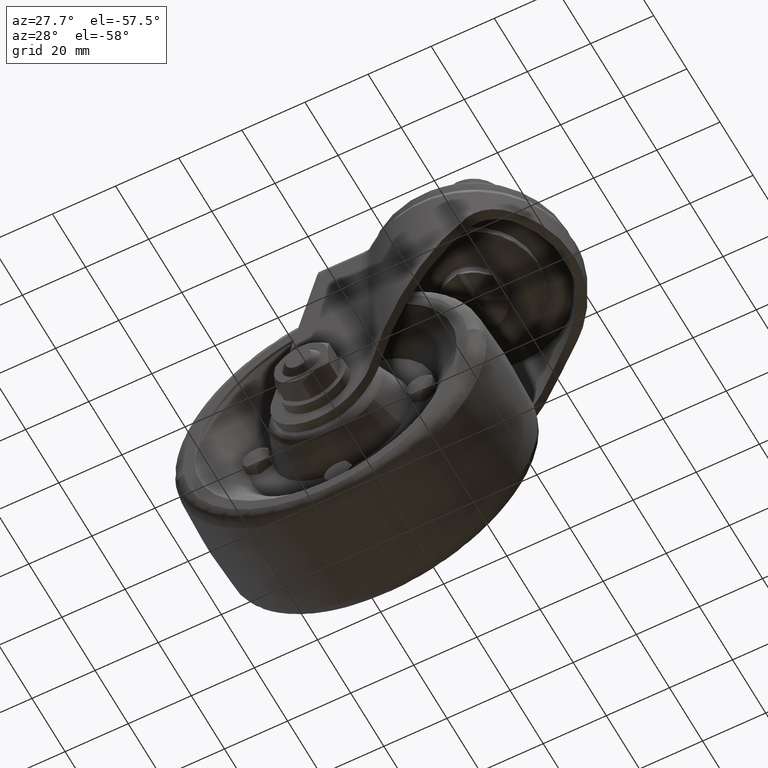
[diagram: clean part render]
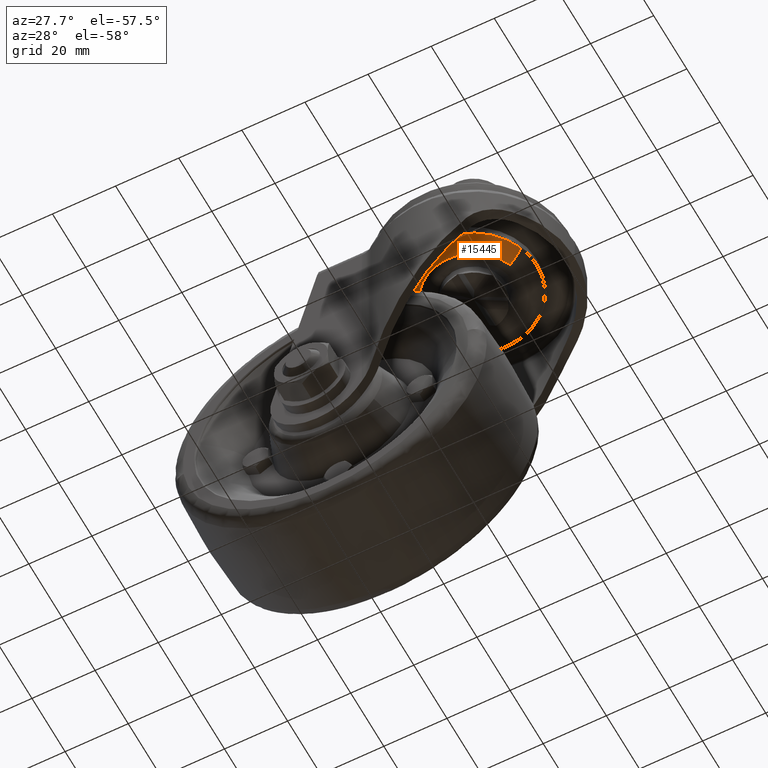
[diagram: same view with one face highlighted and labeled with its STEP entity id]
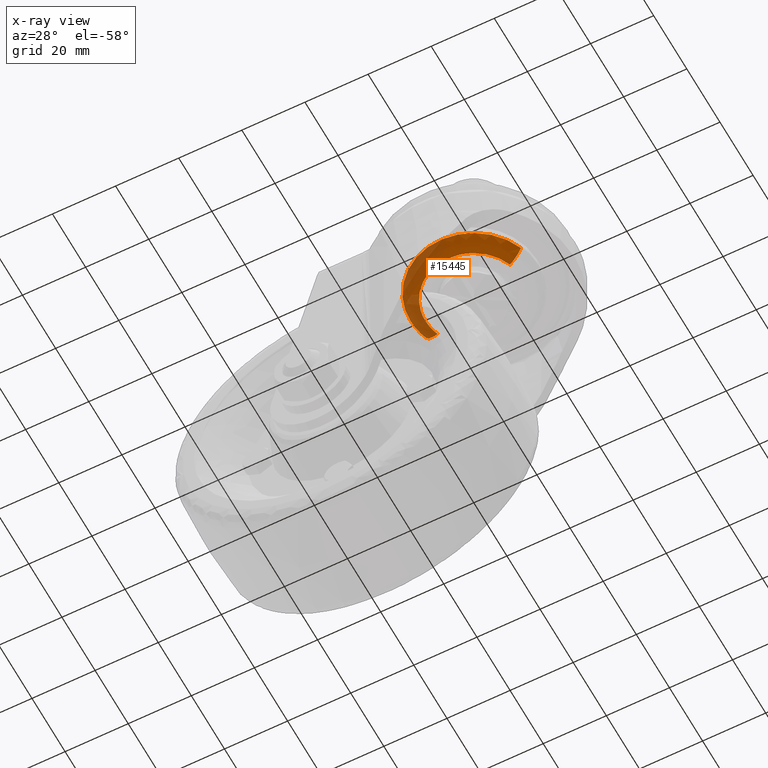
[diagram: x-ray of the same camera — body ghosted, the highlighted face saturated]
A machine part, auxiliary view. The second image highlights one B-rep face of the part: STEP entity #15445.
The next image is the same camera in x-ray: the body ghosted, the highlighted face saturated — about 49% of this face is hidden behind the body in this view.
In plain terms, the highlighted face is a freeform B-spline surface patch.
Its self-contained STEP definition (entity closure, byte-faithful):
#15159=CARTESIAN_POINT('',(18.721037244474051,-7.141382175629758,-17.158471476539489));
#15160=VERTEX_POINT('',#15159);
#15190=CARTESIAN_POINT('',(-19.407384926126159,4.982969518086657,-17.158471476457429));
#15191=VERTEX_POINT('',#15190);
#15205=CARTESIAN_POINT('',(-20.036880368243541,1.421085E-014,-17.158471476386229));
#15206=VERTEX_POINT('',#15205);
#15207=CARTESIAN_POINT('',(-20.036880368243541,1.421085E-014,-17.158471476386229));
#15208=CARTESIAN_POINT('',(-20.036880368216991,2.531246643010311,-17.158471476421457));
#15209=CARTESIAN_POINT('',(-19.407384926126163,4.982969518086657,-17.158471476457422));
#15217=(BOUNDED_CURVE()B_SPLINE_CURVE(2,(#15207,#15208,#15209),.UNSPECIFIED.,.F.,.U.)B_SPLINE_CURVE_WITH_KNOTS((3,3),(0.0,0.042443238244801),.UNSPECIFIED.)CURVE()GEOMETRIC_REPRESENTATION_ITEM()RATIONAL_B_SPLINE_CURVE((1.0,0.950274653334456,0.917433344551560))REPRESENTATION_ITEM(''));
#15218=EDGE_CURVE('',#15206,#15191,#15217,.T.);
#15220=CARTESIAN_POINT('',(18.721037244474051,-7.141382175629758,-17.158471476539489));
#15221=CARTESIAN_POINT('',(18.101685071016099,-8.766330898499282,-17.158471476538271));
#15222=CARTESIAN_POINT('',(16.817701110681721,-11.145520718454730,-17.158471476535031));
#15223=CARTESIAN_POINT('',(14.444360171823501,-13.989874636561961,-17.158471476527961));
#15224=CARTESIAN_POINT('',(11.897373814698010,-16.265202895982320,-17.158471476519821));
#15225=CARTESIAN_POINT('',(9.154508915613791,-17.926623839450169,-17.158471476510481));
#15226=CARTESIAN_POINT('',(6.191654015326948,-19.116335233089082,-17.158471476499891));
#15227=CARTESIAN_POINT('',(3.447062410158945,-19.822263014305761,-17.158471476490011));
#15228=CARTESIAN_POINT('',(0.696989509952723,-20.082629629037431,-17.158471476479900));
#15229=CARTESIAN_POINT('',(-2.057798885781684,-19.984077171062310,-17.158471476468321));
#15230=CARTESIAN_POINT('',(-4.568304838842700,-19.577593126093831,-17.158471476459610));
#15231=CARTESIAN_POINT('',(-7.688416452769262,-18.607358076578670,-17.158471476446259));
#15232=CARTESIAN_POINT('',(-10.546277245489909,-17.156683575066491,-17.158471476434730));
#15233=CARTESIAN_POINT('',(-13.394154019322990,-15.021804264377360,-17.158471476422200));
#15234=CARTESIAN_POINT('',(-15.308620989848009,-13.026792181010780,-17.158471476413499));
#15235=CARTESIAN_POINT('',(-17.058535792947421,-10.622707804015590,-17.158471476405111));
#15236=CARTESIAN_POINT('',(-18.381133408649550,-8.196039391029869,-17.158471476398329));
#15237=CARTESIAN_POINT('',(-19.676060707443590,-4.491939157025166,-17.158471476390790));
#15238=CARTESIAN_POINT('',(-20.037452908914819,-1.738973031245729,-17.158471476387451));
#15239=CARTESIAN_POINT('',(-20.036880368243541,1.421085E-014,-17.158471476386229));
#15240=B_SPLINE_CURVE_WITH_KNOTS('',3,(#15220,#15221,#15222,#15223,#15224,#15225,#15226,#15227,#15228,#15229,#15230,#15231,#15232,#15233,#15234,#15235,#15236,#15237,#15238,#15239),.UNSPECIFIED.,.F.,.U.,(4,1,1,1,1,1,1,1,1,1,1,1,1,1,1,1,1,4),(0.000000209450270,5.216806703856904,8.042594708199523,11.085762100242540,15.433142468715371,17.606831926136419,20.649983453907470,23.910501489247491,25.866616030398351,28.909803248022310,31.518221865193251,35.648238702569877,38.474025021837427,42.169296362444491,43.908219884297523,47.386154797955271,50.429316551283421,55.646053942033021),.UNSPECIFIED.);
#15241=EDGE_CURVE('',#15160,#15206,#15240,.T.);
#15290=CARTESIAN_POINT('',(-18.721037244474061,7.141382175629786,-17.158471476539489));
#15291=VERTEX_POINT('',#15290);
#15315=CARTESIAN_POINT('',(-19.407384926126163,4.982969518086657,-17.158471476457422));
#15316=CARTESIAN_POINT('',(-19.125303899204514,6.081602582074852,-17.158471476498626));
#15317=CARTESIAN_POINT('',(-18.721037244474065,7.141382175629786,-17.158471476539489));
#15325=(BOUNDED_CURVE()B_SPLINE_CURVE(2,(#15315,#15316,#15317),.UNSPECIFIED.,.F.,.U.)B_SPLINE_CURVE_WITH_KNOTS((3,3),(0.042443238244801,0.060525011914595),.UNSPECIFIED.)CURVE()GEOMETRIC_REPRESENTATION_ITEM()RATIONAL_B_SPLINE_CURVE((0.917433344551560,0.903442208696018,0.892515443905241))REPRESENTATION_ITEM(''));
#15326=EDGE_CURVE('',#15191,#15291,#15325,.T.);
#15336=CARTESIAN_POINT('',(19.059312037946597,-6.666490767994134,-16.918148775010515));
#15337=CARTESIAN_POINT('',(18.959341397465380,-6.928562456330548,-16.918148775010515));
#15338=CARTESIAN_POINT('',(11.664495022596292,-26.051904033558049,-16.918148775010511));
#15339=CARTESIAN_POINT('',(-7.193704505480890,-18.858199528077176,-16.918148775010511));
#15340=CARTESIAN_POINT('',(-26.051904033558063,-11.664495022596293,-16.918148775010511));
#15341=CARTESIAN_POINT('',(-18.757057658571561,7.458846554939092,-16.918148775010511));
#15342=CARTESIAN_POINT('',(-18.657087017975613,7.720918243576253,-16.918148775010511));
#15343=CARTESIAN_POINT('',(17.431342710504971,-6.097066096717459,-19.867546006731160));
#15344=CARTESIAN_POINT('',(17.339911157689865,-6.336752681680096,-19.867546006731160));
#15345=CARTESIAN_POINT('',(10.668161047945221,-23.826655787260130,-19.867546006731164));
#15346=CARTESIAN_POINT('',(-6.579247369657465,-17.247408417602681,-19.867546006731160));
#15347=CARTESIAN_POINT('',(-23.826655787260144,-10.668161047945219,-19.867546006731164));
#15348=CARTESIAN_POINT('',(-17.154905677408113,6.821742057916400,-19.867546006731164));
#15349=CARTESIAN_POINT('',(-17.063474124488081,7.061428643154093,-19.867546006731153));
#15350=CARTESIAN_POINT('',(14.247626754895297,-4.983478524210608,-20.418825821761128));
#15351=CARTESIAN_POINT('',(14.172894552117537,-5.179387987837019,-20.418825821761128));
#15352=CARTESIAN_POINT('',(8.719694133523982,-19.474879480722119,-20.418825821761128));
#15353=CARTESIAN_POINT('',(-5.377592673599079,-14.097286807123051,-20.418825821761128));
#15354=CARTESIAN_POINT('',(-19.474879480722137,-8.719694133523980,-20.418825821761128));
#15355=CARTESIAN_POINT('',(-14.021679062040800,5.575797359591276,-20.418825821761125));
#15356=CARTESIAN_POINT('',(-13.946946859177281,5.771706823442507,-20.418825821761132));
#15364=(BOUNDED_SURFACE()B_SPLINE_SURFACE(2,2,((#15336,#15343,#15350),(#15337,#15344,#15351),(#15338,#15345,#15352),(#15339,#15346,#15353),(#15340,#15347,#15354),(#15341,#15348,#15355),(#15342,#15349,#15356)),.UNSPECIFIED.,.F.,.F.,.U.)B_SPLINE_SURFACE_WITH_KNOTS((3,1,2,1,3),(3,3),(0.0,0.668828430811394,34.110249975259407,67.551671519707426,68.220499951299942),(0.0,6.492861008363652),.UNSPECIFIED.)GEOMETRIC_REPRESENTATION_ITEM()RATIONAL_B_SPLINE_SURFACE(((0.942732197887180,0.852025332211033,0.940605827741847),(0.937273750221706,0.847092080014965,0.935159691823211),(0.658892919250907,0.595496217986855,0.657406759941183),(0.931815302556233,0.842158827818896,0.929713555904575),(0.658892919250907,0.595496217986855,0.657406759941183),(0.937273750228081,0.847092080020726,0.935159691829571),(0.942732197899930,0.852025332222556,0.940605827754568)))REPRESENTATION_ITEM('')SURFACE());
#15365=CARTESIAN_POINT('',(14.356644258341079,-5.476527933655380,-20.367878408677569));
#15366=VERTEX_POINT('',#15365);
#15367=CARTESIAN_POINT('',(3.257643554765961,-15.016436028006440,-20.367878409043762));
#15368=VERTEX_POINT('',#15367);
#15369=CARTESIAN_POINT('',(14.356644258341081,-5.476527933655380,-20.367878408677569));
#15370=CARTESIAN_POINT('',(11.390553676954370,-13.252094463618405,-20.367878408861966));
#15371=CARTESIAN_POINT('',(3.257643554765962,-15.016436028006439,-20.367878409043762));
#15379=(BOUNDED_CURVE()B_SPLINE_CURVE(2,(#15369,#15370,#15371),.UNSPECIFIED.,.F.,.U.)B_SPLINE_CURVE_WITH_KNOTS((3,3),(0.560525011919063,0.713703258525062),.UNSPECIFIED.)CURVE()GEOMETRIC_REPRESENTATION_ITEM()RATIONAL_B_SPLINE_CURVE((0.892515443899840,0.799950261845408,0.927299386189355))REPRESENTATION_ITEM(''));
#15380=EDGE_CURVE('',#15366,#15368,#15379,.T.);
#15381=ORIENTED_EDGE('',*,*,#15380,.F.);
#15382=CARTESIAN_POINT('',(18.721037244474054,-7.141382175629758,-17.158471476539493));
#15383=CARTESIAN_POINT('',(17.174578062409985,-6.551465287480615,-19.753498612442872));
#15384=CARTESIAN_POINT('',(14.356644258341086,-5.476527933655381,-20.367878408677576));
#15392=(BOUNDED_CURVE()B_SPLINE_CURVE(2,(#15382,#15383,#15384),.UNSPECIFIED.,.F.,.U.)B_SPLINE_CURVE_WITH_KNOTS((3,3),(-1.575317862293680,-0.439498838753775),.UNSPECIFIED.)CURVE()GEOMETRIC_REPRESENTATION_ITEM()RATIONAL_B_SPLINE_CURVE((0.924037597972795,0.849841085301175,0.922126745522228))REPRESENTATION_ITEM(''));
#15393=EDGE_CURVE('',#15160,#15366,#15392,.T.);
#15394=ORIENTED_EDGE('',*,*,#15393,.F.);
#15395=ORIENTED_EDGE('',*,*,#15241,.T.);
#15396=ORIENTED_EDGE('',*,*,#15218,.T.);
#15397=ORIENTED_EDGE('',*,*,#15326,.T.);
#15398=CARTESIAN_POINT('',(-14.356644258341090,5.476527933655406,-20.367878408677580));
#15399=VERTEX_POINT('',#15398);
#15400=CARTESIAN_POINT('',(-18.721037244474058,7.141382175629786,-17.158471476539496));
#15401=CARTESIAN_POINT('',(-17.174578062409971,6.551465287480641,-19.753498612442872));
#15402=CARTESIAN_POINT('',(-14.356644258341086,5.476527933655406,-20.367878408677591));
#15410=(BOUNDED_CURVE()B_SPLINE_CURVE(2,(#15400,#15401,#15402),.UNSPECIFIED.,.F.,.U.)B_SPLINE_CURVE_WITH_KNOTS((3,3),(-1.575317862293679,-0.439498838753775),.UNSPECIFIED.)CURVE()GEOMETRIC_REPRESENTATION_ITEM()RATIONAL_B_SPLINE_CURVE((0.924037597972795,0.849841085301175,0.922126745522228))REPRESENTATION_ITEM(''));
#15411=EDGE_CURVE('',#15291,#15399,#15410,.T.);
#15412=ORIENTED_EDGE('',*,*,#15411,.T.);
#15413=CARTESIAN_POINT('',(-15.365727855144950,1.421085E-014,-20.367878409008920));
#15414=VERTEX_POINT('',#15413);
#15415=CARTESIAN_POINT('',(-15.365727855144950,1.421085E-014,-20.367878409008920));
#15416=CARTESIAN_POINT('',(-15.365727855916353,2.831228863648394,-20.367878408842813));
#15417=CARTESIAN_POINT('',(-14.356644258341088,5.476527933655406,-20.367878408677591));
#15425=(BOUNDED_CURVE()B_SPLINE_CURVE(2,(#15415,#15416,#15417),.UNSPECIFIED.,.F.,.U.)B_SPLINE_CURVE_WITH_KNOTS((3,3),(0.0,0.060525011919063),.UNSPECIFIED.)CURVE()GEOMETRIC_REPRESENTATION_ITEM()RATIONAL_B_SPLINE_CURVE((1.0,0.929090537761212,0.892515443899840))REPRESENTATION_ITEM(''));
#15426=EDGE_CURVE('',#15414,#15399,#15425,.T.);
#15427=ORIENTED_EDGE('',*,*,#15426,.F.);
#15428=CARTESIAN_POINT('',(3.257643554765962,-15.016436028006439,-20.367878409043762));
#15429=CARTESIAN_POINT('',(1.647547702768692,-15.365727854984925,-20.367878409042248));
#15430=CARTESIAN_POINT('',(-3.276972E-011,-15.365727854993899,-20.367878409040379));
#15431=CARTESIAN_POINT('',(-15.365727855159587,-15.365727855077521,-20.367878409022968));
#15432=CARTESIAN_POINT('',(-15.365727855144950,1.421085E-014,-20.367878409008920));
#15440=(BOUNDED_CURVE()B_SPLINE_CURVE(2,(#15428,#15429,#15430,#15431,#15432),.UNSPECIFIED.,.F.,.U.)B_SPLINE_CURVE_WITH_KNOTS((3,2,3),(0.713703258525062,0.750000000000000,1.0),.UNSPECIFIED.)CURVE()GEOMETRIC_REPRESENTATION_ITEM()RATIONAL_B_SPLINE_CURVE((0.927299386189355,0.957475722227863,1.0,0.707106781186548,1.0))REPRESENTATION_ITEM(''));
#15441=EDGE_CURVE('',#15368,#15414,#15440,.T.);
#15442=ORIENTED_EDGE('',*,*,#15441,.F.);
#15443=EDGE_LOOP('',(#15381,#15394,#15395,#15396,#15397,#15412,#15427,#15442));
#15444=FACE_OUTER_BOUND('',#15443,.T.);
#15445=ADVANCED_FACE('',(#15444),#15364,.T.);